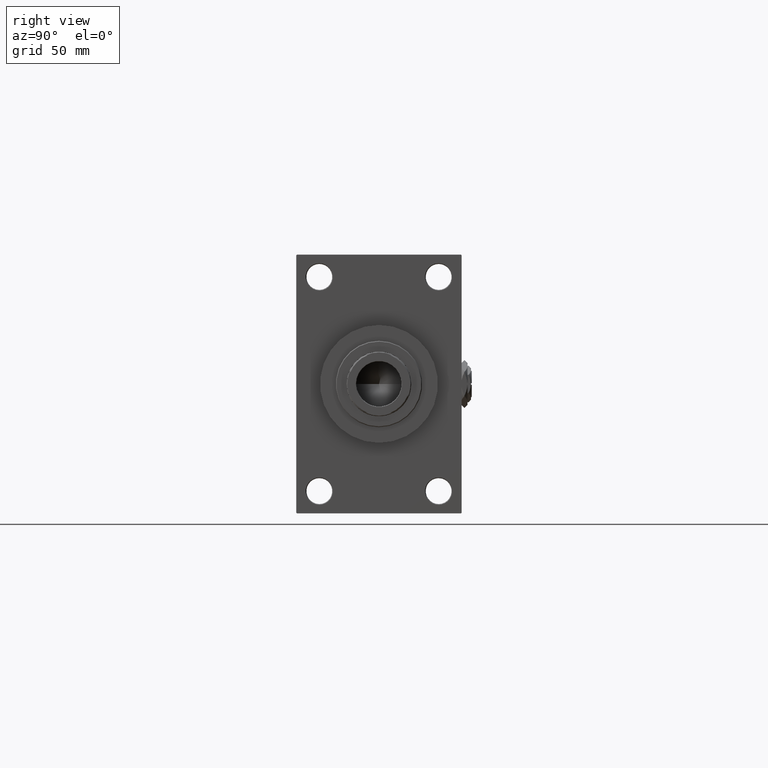
[diagram: clean part render]
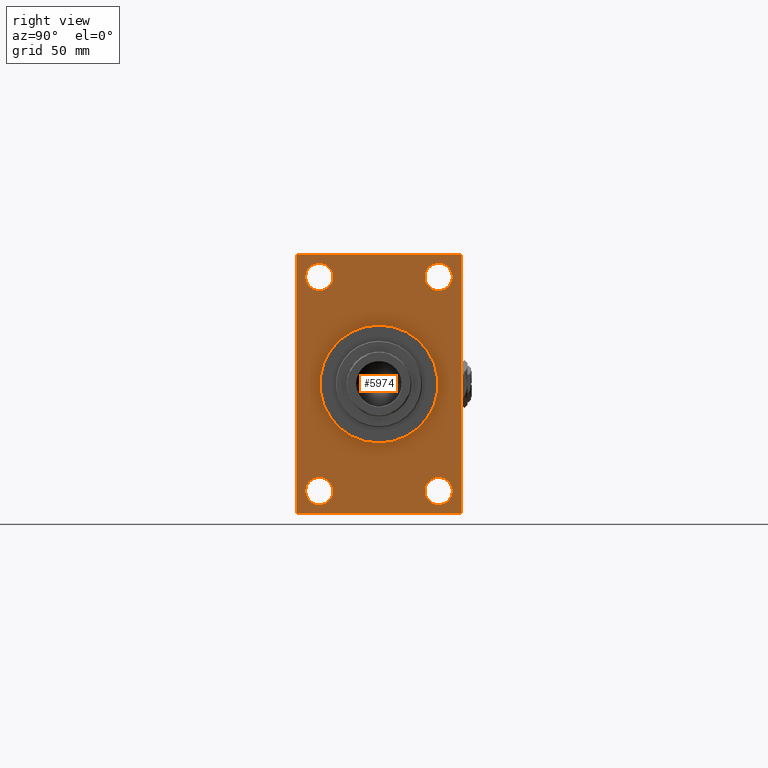
[diagram: same view with one face highlighted and labeled with its STEP entity id]
A machine part, right view. The second image highlights one B-rep face of the part: STEP entity #5974.
In plain terms, the highlighted planar face has unit normal (-1, 0, 0).
Its self-contained STEP definition (entity closure, byte-faithful):
#74 = EDGE_CURVE ( 'NONE', #49198, #40020, #14113, .T. ) ;
#229 = DIRECTION ( 'NONE',  ( -1.000000000000000000, 0.000000000000000000, -0.000000000000000000 ) ) ;
#375 = DIRECTION ( 'NONE',  ( 0.000000000000000000, -0.7071067811865474617, 0.7071067811865474617 ) ) ;
#591 = DIRECTION ( 'NONE',  ( -1.000000000000000000, 0.000000000000000000, -0.000000000000000000 ) ) ;
#749 = CARTESIAN_POINT ( 'NONE',  ( 388.9999999999999432, 56.99999999999997868, -90.00000000000000000 ) ) ;
#751 = DIRECTION ( 'NONE',  ( -0.000000000000000000, -0.7071067811865524577, -0.7071067811865426878 ) ) ;
#793 = EDGE_CURVE ( 'NONE', #18381, #44000, #5276, .T. ) ;
#1166 = DIRECTION ( 'NONE',  ( -1.000000000000000000, 0.000000000000000000, -0.000000000000000000 ) ) ;
#1559 = EDGE_LOOP ( 'NONE', ( #47762, #12743 ) ) ;
#1612 = CARTESIAN_POINT ( 'NONE',  ( 388.9999999999999432, -57.50000000000002132, 89.99999999999997158 ) ) ;
#1881 = EDGE_CURVE ( 'NONE', #36517, #31714, #2890, .T. ) ;
#2079 = CARTESIAN_POINT ( 'NONE',  ( 388.9999999999999432, -57.00000000000007105, 89.99999999999997158 ) ) ;
#2218 = ORIENTED_EDGE ( 'NONE', *, *, #15785, .F. ) ;
#2374 = EDGE_LOOP ( 'NONE', ( #19212, #27233 ) ) ;
#2447 = CARTESIAN_POINT ( 'NONE',  ( 388.9999999999999432, -41.49999999999999289, 84.00000000000001421 ) ) ;
#2676 = EDGE_CURVE ( 'NONE', #48217, #23263, #48744, .T. ) ;
#2890 = LINE ( 'NONE', #48236, #38275 ) ;
#3167 = CARTESIAN_POINT ( 'NONE',  ( 388.9999999999999432, 57.49999999999997868, -89.50000000000001421 ) ) ;
#3423 = LINE ( 'NONE', #49500, #45031 ) ;
#3943 = DIRECTION ( 'NONE',  ( 0.000000000000000000, 0.000000000000000000, 1.000000000000000000 ) ) ;
#4339 = ORIENTED_EDGE ( 'NONE', *, *, #793, .T. ) ;
#4469 = ORIENTED_EDGE ( 'NONE', *, *, #45371, .T. ) ;
#4515 = CARTESIAN_POINT ( 'NONE',  ( 388.9999999999999432, 0.000000000000000000, 0.000000000000000000 ) ) ;
#5107 = VERTEX_POINT ( 'NONE', #749 ) ;
#5276 = CIRCLE ( 'NONE', #39857, 9.500000000000008882 ) ;
#5313 = AXIS2_PLACEMENT_3D ( 'NONE', #43727, #1166, #20344 ) ;
#5521 = EDGE_CURVE ( 'NONE', #40020, #49198, #14331, .T. ) ;
#5974 = ADVANCED_FACE ( 'NONE', ( #18904, #34224, #45807, #30450, #19142, #15358 ), #30697, .F. ) ;
#6684 = CIRCLE ( 'NONE', #25173, 41.00000000000000000 ) ;
#7030 = CARTESIAN_POINT ( 'NONE',  ( 388.9999999999999432, -57.00000000000002132, -90.00000000000001421 ) ) ;
#7390 = ORIENTED_EDGE ( 'NONE', *, *, #5521, .T. ) ;
#8282 = DIRECTION ( 'NONE',  ( 0.000000000000000000, 3.854941057726238467E-17, -1.000000000000000000 ) ) ;
#8497 = CARTESIAN_POINT ( 'NONE',  ( 388.9999999999999432, 57.49999999999997868, -89.49999999999995737 ) ) ;
#9536 = VERTEX_POINT ( 'NONE', #47247 ) ;
#10434 = EDGE_LOOP ( 'NONE', ( #2218, #15720 ) ) ;
#11584 = CARTESIAN_POINT ( 'NONE',  ( 388.9999999999999432, -41.49999999999999289, -74.49999999999998579 ) ) ;
#12064 = DIRECTION ( 'NONE',  ( -0.000000000000000000, 0.000000000000000000, 1.000000000000000000 ) ) ;
#12101 = DIRECTION ( 'NONE',  ( 0.000000000000000000, 0.000000000000000000, -1.000000000000000000 ) ) ;
#12113 = LINE ( 'NONE', #12861, #45074 ) ;
#12181 = DIRECTION ( 'NONE',  ( 0.000000000000000000, 0.000000000000000000, 1.000000000000000000 ) ) ;
#12430 = ORIENTED_EDGE ( 'NONE', *, *, #47349, .T. ) ;
#12444 = ORIENTED_EDGE ( 'NONE', *, *, #33088, .T. ) ;
#12743 = ORIENTED_EDGE ( 'NONE', *, *, #2676, .T. ) ;
#12861 = CARTESIAN_POINT ( 'NONE',  ( 388.9999999999999432, -57.50000000000002132, 89.50000000000002842 ) ) ;
#13102 = EDGE_CURVE ( 'NONE', #44000, #18381, #22485, .T. ) ;
#13174 = CARTESIAN_POINT ( 'NONE',  ( 388.9999999999999432, -41.49999999999999289, -74.49999999999998579 ) ) ;
#13437 = EDGE_CURVE ( 'NONE', #30127, #41922, #19334, .T. ) ;
#13944 = DIRECTION ( 'NONE',  ( -1.000000000000000000, 0.000000000000000000, -0.000000000000000000 ) ) ;
#14113 = CIRCLE ( 'NONE', #26969, 9.500000000000008882 ) ;
#14256 = CARTESIAN_POINT ( 'NONE',  ( 388.9999999999999432, -41.49999999999999289, 65.00000000000000000 ) ) ;
#14331 = CIRCLE ( 'NONE', #26369, 9.500000000000008882 ) ;
#15358 = FACE_OUTER_BOUND ( 'NONE', #47478, .T. ) ;
#15720 = ORIENTED_EDGE ( 'NONE', *, *, #42807, .F. ) ;
#15785 = EDGE_CURVE ( 'NONE', #19182, #46215, #24992, .T. ) ;
#16137 = ORIENTED_EDGE ( 'NONE', *, *, #13102, .T. ) ;
#16939 = CARTESIAN_POINT ( 'NONE',  ( 388.9999999999999432, -41.49999999999999289, 74.50000000000001421 ) ) ;
#18381 = VERTEX_POINT ( 'NONE', #26961 ) ;
#18880 = DIRECTION ( 'NONE',  ( -1.000000000000000000, 0.000000000000000000, -0.000000000000000000 ) ) ;
#18904 = FACE_BOUND ( 'NONE', #2374, .T. ) ;
#19142 = FACE_BOUND ( 'NONE', #10434, .T. ) ;
#19182 = VERTEX_POINT ( 'NONE', #47887 ) ;
#19212 = ORIENTED_EDGE ( 'NONE', *, *, #37345, .T. ) ;
#19310 = ORIENTED_EDGE ( 'NONE', *, *, #1881, .T. ) ;
#19334 = CIRCLE ( 'NONE', #28136, 9.500000000000008882 ) ;
#19797 = LINE ( 'NONE', #1612, #45067 ) ;
#19868 = CARTESIAN_POINT ( 'NONE',  ( 388.9999999999999432, 57.49999999999997158, 89.99999999999998579 ) ) ;
#19871 = EDGE_CURVE ( 'NONE', #5107, #28319, #39477, .T. ) ;
#19888 = EDGE_CURVE ( 'NONE', #44560, #24452, #20367, .T. ) ;
#20344 = DIRECTION ( 'NONE',  ( 0.000000000000000000, 0.000000000000000000, 1.000000000000000000 ) ) ;
#20367 = LINE ( 'NONE', #19868, #43878 ) ;
#21023 = VERTEX_POINT ( 'NONE', #23836 ) ;
#21411 = CARTESIAN_POINT ( 'NONE',  ( 388.9999999999999432, 41.50000000000000711, 84.00000000000001421 ) ) ;
#21741 = EDGE_LOOP ( 'NONE', ( #7390, #37343 ) ) ;
#21909 = LINE ( 'NONE', #7030, #46734 ) ;
#22485 = CIRCLE ( 'NONE', #23304, 9.500000000000008882 ) ;
#22785 = ORIENTED_EDGE ( 'NONE', *, *, #33210, .T. ) ;
#22984 = CARTESIAN_POINT ( 'NONE',  ( 388.9999999999999432, -57.00000000000002132, -90.00000000000001421 ) ) ;
#23263 = VERTEX_POINT ( 'NONE', #23551 ) ;
#23304 = AXIS2_PLACEMENT_3D ( 'NONE', #30948, #13944, #48910 ) ;
#23369 = DIRECTION ( 'NONE',  ( 1.000000000000000000, 0.000000000000000000, 0.000000000000000000 ) ) ;
#23551 = CARTESIAN_POINT ( 'NONE',  ( 388.9999999999999432, 41.50000000000000711, 65.00000000000000000 ) ) ;
#23586 = ORIENTED_EDGE ( 'NONE', *, *, #19871, .F. ) ;
#23653 = DIRECTION ( 'NONE',  ( -1.000000000000000000, 0.000000000000000000, -0.000000000000000000 ) ) ;
#23788 = CARTESIAN_POINT ( 'NONE',  ( 388.9999999999999432, 41.50000000000000711, -74.50000000000000000 ) ) ;
#23836 = CARTESIAN_POINT ( 'NONE',  ( 388.9999999999999432, -57.50000000000002132, -89.50000000000002842 ) ) ;
#24452 = VERTEX_POINT ( 'NONE', #8497 ) ;
#24500 = DIRECTION ( 'NONE',  ( 0.000000000000000000, 0.000000000000000000, 1.000000000000000000 ) ) ;
#24992 = CIRCLE ( 'NONE', #46690, 41.00000000000000000 ) ;
#25173 = AXIS2_PLACEMENT_3D ( 'NONE', #34684, #23369, #38705 ) ;
#26104 = CARTESIAN_POINT ( 'NONE',  ( 388.9999999999999432, 41.50000000000000711, -64.99999999999998579 ) ) ;
#26369 = AXIS2_PLACEMENT_3D ( 'NONE', #13174, #28280, #12181 ) ;
#26882 = DIRECTION ( 'NONE',  ( -1.000000000000000000, 0.000000000000000000, -0.000000000000000000 ) ) ;
#26961 = CARTESIAN_POINT ( 'NONE',  ( 388.9999999999999432, 41.50000000000000711, -84.00000000000000000 ) ) ;
#26969 = AXIS2_PLACEMENT_3D ( 'NONE', #11584, #229, #49832 ) ;
#27091 = LINE ( 'NONE', #3167, #46613 ) ;
#27233 = ORIENTED_EDGE ( 'NONE', *, *, #13437, .T. ) ;
#27283 = ORIENTED_EDGE ( 'NONE', *, *, #19888, .F. ) ;
#27416 = CARTESIAN_POINT ( 'NONE',  ( 388.9999999999999432, 57.49999999999997868, -90.00000000000000000 ) ) ;
#27532 = CIRCLE ( 'NONE', #42798, 9.500000000000008882 ) ;
#27662 = DIRECTION ( 'NONE',  ( 0.000000000000000000, -1.000000000000000000, -1.206764157201257045E-16 ) ) ;
#27906 = CARTESIAN_POINT ( 'NONE',  ( 388.9999999999999432, 0.000000000000000000, 0.000000000000000000 ) ) ;
#28136 = AXIS2_PLACEMENT_3D ( 'NONE', #45764, #26882, #3943 ) ;
#28280 = DIRECTION ( 'NONE',  ( -1.000000000000000000, 0.000000000000000000, -0.000000000000000000 ) ) ;
#28319 = VERTEX_POINT ( 'NONE', #22984 ) ;
#30127 = VERTEX_POINT ( 'NONE', #2447 ) ;
#30450 = FACE_BOUND ( 'NONE', #1559, .T. ) ;
#30661 = AXIS2_PLACEMENT_3D ( 'NONE', #42240, #18880, #34202 ) ;
#30697 = PLANE ( 'NONE',  #33577 ) ;
#30735 = DIRECTION ( 'NONE',  ( 1.000000000000000000, 0.000000000000000000, 0.000000000000000000 ) ) ;
#30948 = CARTESIAN_POINT ( 'NONE',  ( 388.9999999999999432, 41.50000000000000711, -74.50000000000000000 ) ) ;
#31319 = DIRECTION ( 'NONE',  ( 0.000000000000000000, 0.000000000000000000, 1.000000000000000000 ) ) ;
#31352 = DIRECTION ( 'NONE',  ( 0.000000000000000000, 0.000000000000000000, -1.000000000000000000 ) ) ;
#31714 = VERTEX_POINT ( 'NONE', #2079 ) ;
#32654 = CARTESIAN_POINT ( 'NONE',  ( 388.9999999999999432, 57.49999999999997158, 89.49999999999998579 ) ) ;
#33042 = EDGE_CURVE ( 'NONE', #44560, #36517, #3423, .T. ) ;
#33088 = EDGE_CURVE ( 'NONE', #5107, #24452, #27091, .T. ) ;
#33210 = EDGE_CURVE ( 'NONE', #9536, #21023, #19797, .T. ) ;
#33222 = DIRECTION ( 'NONE',  ( 0.000000000000000000, 0.7071067811865965336, -0.7071067811864985009 ) ) ;
#33292 = CARTESIAN_POINT ( 'NONE',  ( 388.9999999999999432, 5.021051876504148963E-15, -41.00000000000000000 ) ) ;
#33577 = AXIS2_PLACEMENT_3D ( 'NONE', #27906, #23653, #12064 ) ;
#34202 = DIRECTION ( 'NONE',  ( 0.000000000000000000, 0.000000000000000000, 1.000000000000000000 ) ) ;
#34224 = FACE_BOUND ( 'NONE', #21741, .T. ) ;
#34684 = CARTESIAN_POINT ( 'NONE',  ( 388.9999999999999432, 0.000000000000000000, 0.000000000000000000 ) ) ;
#35654 = CARTESIAN_POINT ( 'NONE',  ( 388.9999999999999432, -41.49999999999999289, -64.99999999999997158 ) ) ;
#35931 = EDGE_CURVE ( 'NONE', #23263, #48217, #36255, .T. ) ;
#36255 = CIRCLE ( 'NONE', #30661, 9.500000000000008882 ) ;
#36517 = VERTEX_POINT ( 'NONE', #43608 ) ;
#37343 = ORIENTED_EDGE ( 'NONE', *, *, #74, .T. ) ;
#37345 = EDGE_CURVE ( 'NONE', #41922, #30127, #27532, .T. ) ;
#38273 = VECTOR ( 'NONE', #27662, 1000.000000000000000 ) ;
#38275 = VECTOR ( 'NONE', #44952, 1000.000000000000000 ) ;
#38408 = DIRECTION ( 'NONE',  ( -0.000000000000000000, 0.7071067811865573427, 0.7071067811865378028 ) ) ;
#38705 = DIRECTION ( 'NONE',  ( 0.000000000000000000, 0.000000000000000000, -1.000000000000000000 ) ) ;
#39100 = EDGE_LOOP ( 'NONE', ( #4339, #16137 ) ) ;
#39477 = LINE ( 'NONE', #27416, #38273 ) ;
#39589 = DIRECTION ( 'NONE',  ( -1.000000000000000000, 0.000000000000000000, -0.000000000000000000 ) ) ;
#39857 = AXIS2_PLACEMENT_3D ( 'NONE', #23788, #591, #31319 ) ;
#40020 = VERTEX_POINT ( 'NONE', #41003 ) ;
#41003 = CARTESIAN_POINT ( 'NONE',  ( 388.9999999999999432, -41.49999999999999289, -83.99999999999998579 ) ) ;
#41922 = VERTEX_POINT ( 'NONE', #14256 ) ;
#42240 = CARTESIAN_POINT ( 'NONE',  ( 388.9999999999999432, 41.50000000000000711, 74.50000000000001421 ) ) ;
#42262 = ORIENTED_EDGE ( 'NONE', *, *, #33042, .T. ) ;
#42798 = AXIS2_PLACEMENT_3D ( 'NONE', #16939, #39589, #24500 ) ;
#42807 = EDGE_CURVE ( 'NONE', #46215, #19182, #6684, .T. ) ;
#43608 = CARTESIAN_POINT ( 'NONE',  ( 388.9999999999999432, 56.99999999999997158, 89.99999999999998579 ) ) ;
#43727 = CARTESIAN_POINT ( 'NONE',  ( 388.9999999999999432, 41.50000000000000711, 74.50000000000001421 ) ) ;
#43878 = VECTOR ( 'NONE', #8282, 1000.000000000000000 ) ;
#44000 = VERTEX_POINT ( 'NONE', #26104 ) ;
#44560 = VERTEX_POINT ( 'NONE', #32654 ) ;
#44952 = DIRECTION ( 'NONE',  ( 0.000000000000000000, -1.000000000000000000, -1.206764157201257291E-16 ) ) ;
#45031 = VECTOR ( 'NONE', #375, 1000.000000000000114 ) ;
#45067 = VECTOR ( 'NONE', #31352, 1000.000000000000000 ) ;
#45074 = VECTOR ( 'NONE', #751, 1000.000000000000000 ) ;
#45371 = EDGE_CURVE ( 'NONE', #31714, #9536, #12113, .T. ) ;
#45764 = CARTESIAN_POINT ( 'NONE',  ( 388.9999999999999432, -41.49999999999999289, 74.50000000000001421 ) ) ;
#45807 = FACE_BOUND ( 'NONE', #39100, .T. ) ;
#46215 = VERTEX_POINT ( 'NONE', #33292 ) ;
#46613 = VECTOR ( 'NONE', #38408, 1000.000000000000000 ) ;
#46690 = AXIS2_PLACEMENT_3D ( 'NONE', #4515, #30735, #12101 ) ;
#46734 = VECTOR ( 'NONE', #33222, 1000.000000000000114 ) ;
#47247 = CARTESIAN_POINT ( 'NONE',  ( 388.9999999999999432, -57.50000000000002132, 89.50000000000002842 ) ) ;
#47349 = EDGE_CURVE ( 'NONE', #21023, #28319, #21909, .T. ) ;
#47478 = EDGE_LOOP ( 'NONE', ( #22785, #12430, #23586, #12444, #27283, #42262, #19310, #4469 ) ) ;
#47762 = ORIENTED_EDGE ( 'NONE', *, *, #35931, .T. ) ;
#47887 = CARTESIAN_POINT ( 'NONE',  ( 388.9999999999999432, 0.000000000000000000, 41.00000000000000000 ) ) ;
#48217 = VERTEX_POINT ( 'NONE', #21411 ) ;
#48236 = CARTESIAN_POINT ( 'NONE',  ( 388.9999999999999432, 57.49999999999997158, 89.99999999999998579 ) ) ;
#48744 = CIRCLE ( 'NONE', #5313, 9.500000000000008882 ) ;
#48910 = DIRECTION ( 'NONE',  ( 0.000000000000000000, 0.000000000000000000, 1.000000000000000000 ) ) ;
#49198 = VERTEX_POINT ( 'NONE', #35654 ) ;
#49500 = CARTESIAN_POINT ( 'NONE',  ( 388.9999999999999432, 56.99999999999997158, 89.99999999999998579 ) ) ;
#49832 = DIRECTION ( 'NONE',  ( 0.000000000000000000, 0.000000000000000000, 1.000000000000000000 ) ) ;